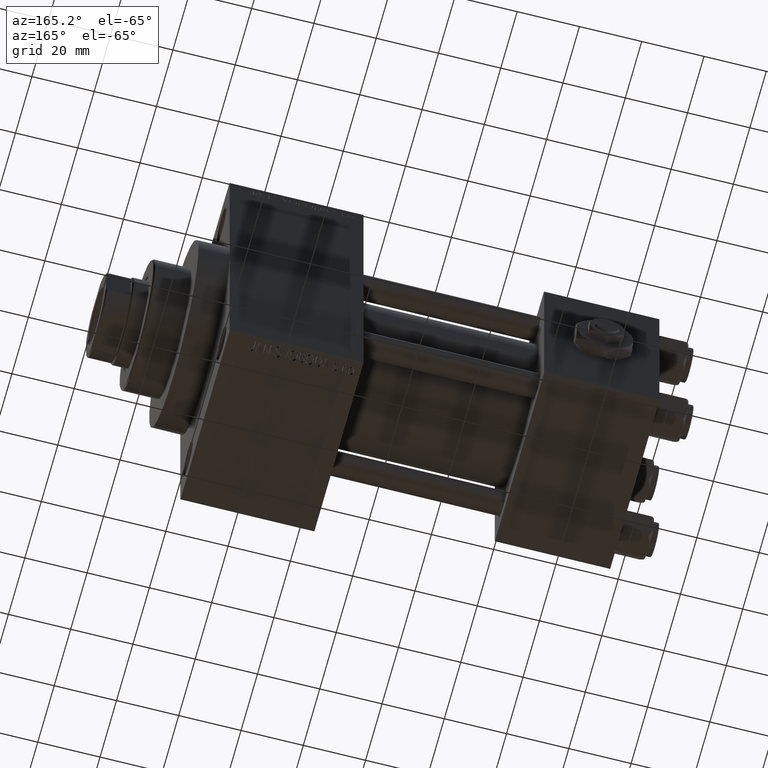
[diagram: clean part render]
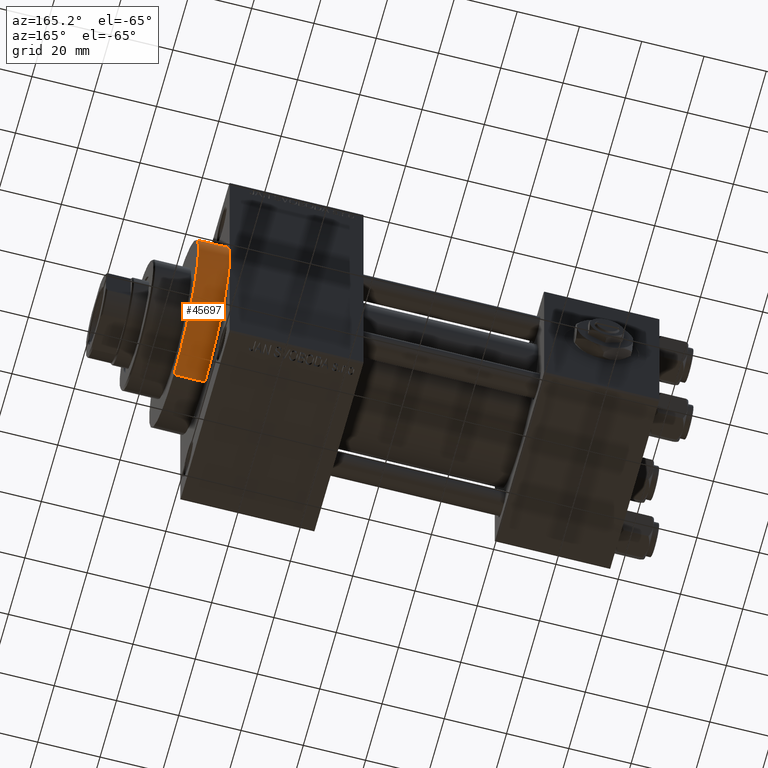
[diagram: same view with one face highlighted and labeled with its STEP entity id]
A machine part, auxiliary view. The second image highlights one B-rep face of the part: STEP entity #45697.
In plain terms, the highlighted cylindrical surface (partial cylindrical patch) has radius 30 mm, axis along (-1, -0, -0).
Its self-contained STEP definition (entity closure, byte-faithful):
#1135 = ORIENTED_EDGE ( 'NONE', *, *, #45464, .T. ) ;
#2212 = LINE ( 'NONE', #13050, #12546 ) ;
#4553 = DIRECTION ( 'NONE',  ( 1.000000000000000000, 0.000000000000000000, 0.000000000000000000 ) ) ;
#5103 = DIRECTION ( 'NONE',  ( 0.000000000000000000, 0.000000000000000000, -1.000000000000000000 ) ) ;
#7764 = DIRECTION ( 'NONE',  ( 0.000000000000000000, 0.000000000000000000, -1.000000000000000000 ) ) ;
#8803 = DIRECTION ( 'NONE',  ( 1.000000000000000000, 0.000000000000000000, 0.000000000000000000 ) ) ;
#11087 = DIRECTION ( 'NONE',  ( 1.000000000000000000, 0.000000000000000000, 0.000000000000000000 ) ) ;
#11172 = CARTESIAN_POINT ( 'NONE',  ( 138.0000000000000000, 3.673940397442059178E-15, -30.00000000000000000 ) ) ;
#11749 = LINE ( 'NONE', #14464, #42410 ) ;
#12546 = VECTOR ( 'NONE', #32283, 1000.000000000000000 ) ;
#13050 = CARTESIAN_POINT ( 'NONE',  ( 148.0000000000000284, 3.673940397442059178E-15, -30.00000000000000000 ) ) ;
#14153 = DIRECTION ( 'NONE',  ( 0.000000000000000000, 0.000000000000000000, 1.000000000000000000 ) ) ;
#14464 = CARTESIAN_POINT ( 'NONE',  ( 148.0000000000000284, 0.000000000000000000, 30.00000000000000000 ) ) ;
#14497 = VERTEX_POINT ( 'NONE', #11172 ) ;
#15716 = CARTESIAN_POINT ( 'NONE',  ( 148.0000000000000284, 0.000000000000000000, 0.000000000000000000 ) ) ;
#16584 = CIRCLE ( 'NONE', #44899, 30.00000000000000000 ) ;
#17839 = DIRECTION ( 'NONE',  ( -1.000000000000000000, -0.000000000000000000, -0.000000000000000000 ) ) ;
#18216 = CARTESIAN_POINT ( 'NONE',  ( 138.0000000000000000, 0.000000000000000000, 0.000000000000000000 ) ) ;
#19303 = VERTEX_POINT ( 'NONE', #36318 ) ;
#19380 = ORIENTED_EDGE ( 'NONE', *, *, #40310, .F. ) ;
#19629 = AXIS2_PLACEMENT_3D ( 'NONE', #29419, #17839, #14153 ) ;
#19660 = AXIS2_PLACEMENT_3D ( 'NONE', #18216, #11087, #26100 ) ;
#24757 = FACE_OUTER_BOUND ( 'NONE', #38687, .T. ) ;
#25637 = VERTEX_POINT ( 'NONE', #38968 ) ;
#26100 = DIRECTION ( 'NONE',  ( 0.000000000000000000, 0.000000000000000000, -1.000000000000000000 ) ) ;
#28861 = EDGE_CURVE ( 'NONE', #30389, #25637, #36187, .T. ) ;
#29419 = CARTESIAN_POINT ( 'NONE',  ( 148.0000000000000284, 0.000000000000000000, 0.000000000000000000 ) ) ;
#29746 = CARTESIAN_POINT ( 'NONE',  ( 148.0000000000000284, 0.000000000000000000, 30.00000000000000000 ) ) ;
#30389 = VERTEX_POINT ( 'NONE', #48124 ) ;
#30693 = CARTESIAN_POINT ( 'NONE',  ( 138.0000000000000000, 0.000000000000000000, 0.000000000000000000 ) ) ;
#30951 = ORIENTED_EDGE ( 'NONE', *, *, #44959, .T. ) ;
#31275 = CIRCLE ( 'NONE', #35993, 30.00000000000000000 ) ;
#32283 = DIRECTION ( 'NONE',  ( -1.000000000000000000, -0.000000000000000000, -0.000000000000000000 ) ) ;
#32447 = ORIENTED_EDGE ( 'NONE', *, *, #28861, .T. ) ;
#35993 = AXIS2_PLACEMENT_3D ( 'NONE', #15716, #8803, #5103 ) ;
#36077 = EDGE_CURVE ( 'NONE', #19303, #37866, #31275, .T. ) ;
#36187 = CIRCLE ( 'NONE', #19660, 30.00000000000000000 ) ;
#36318 = CARTESIAN_POINT ( 'NONE',  ( 148.0000000000000284, 3.673940397442059178E-15, -30.00000000000000000 ) ) ;
#37866 = VERTEX_POINT ( 'NONE', #29746 ) ;
#38687 = EDGE_LOOP ( 'NONE', ( #44504, #30951, #1135, #32447, #19380 ) ) ;
#38968 = CARTESIAN_POINT ( 'NONE',  ( 138.0000000000000000, 0.000000000000000000, 30.00000000000000000 ) ) ;
#40310 = EDGE_CURVE ( 'NONE', #37866, #25637, #11749, .T. ) ;
#40507 = CYLINDRICAL_SURFACE ( 'NONE', #19629, 30.00000000000000000 ) ;
#42410 = VECTOR ( 'NONE', #45495, 1000.000000000000000 ) ;
#44504 = ORIENTED_EDGE ( 'NONE', *, *, #36077, .F. ) ;
#44899 = AXIS2_PLACEMENT_3D ( 'NONE', #30693, #4553, #7764 ) ;
#44959 = EDGE_CURVE ( 'NONE', #19303, #14497, #2212, .T. ) ;
#45464 = EDGE_CURVE ( 'NONE', #14497, #30389, #16584, .T. ) ;
#45495 = DIRECTION ( 'NONE',  ( -1.000000000000000000, -0.000000000000000000, -0.000000000000000000 ) ) ;
#45697 = ADVANCED_FACE ( 'NONE', ( #24757 ), #40507, .T. ) ;
#48124 = CARTESIAN_POINT ( 'NONE',  ( 138.0000000000000000, 30.00000000000000000, 0.000000000000000000 ) ) ;